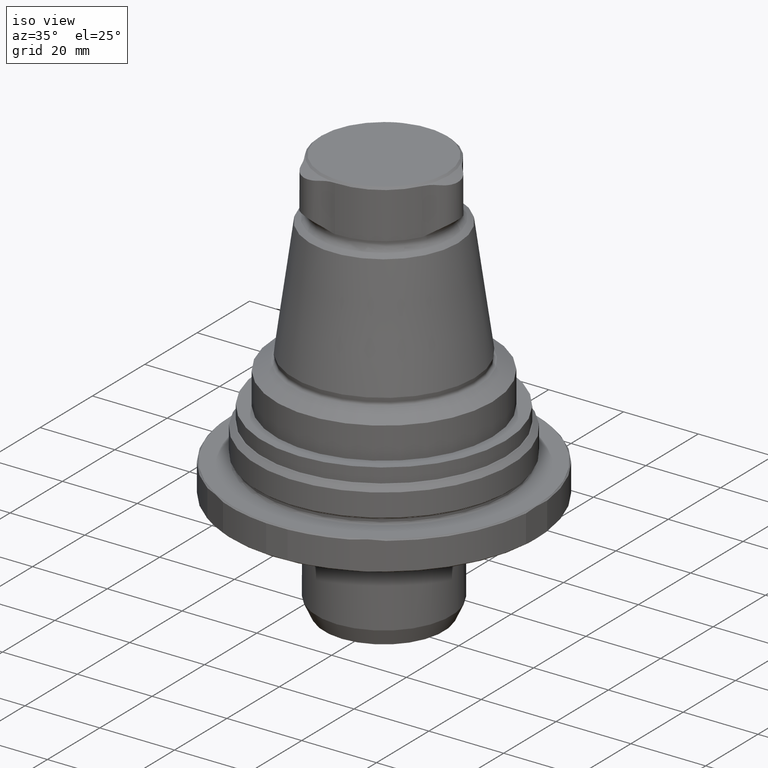
[diagram: clean part render]
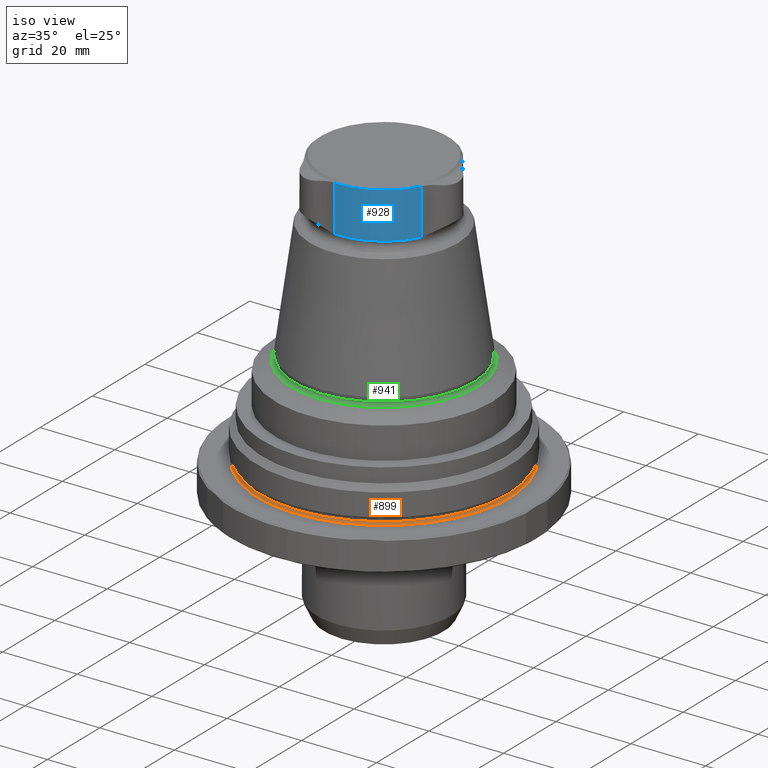
[diagram: same view with three faces highlighted in distinct colors, each labeled with its STEP entity id]
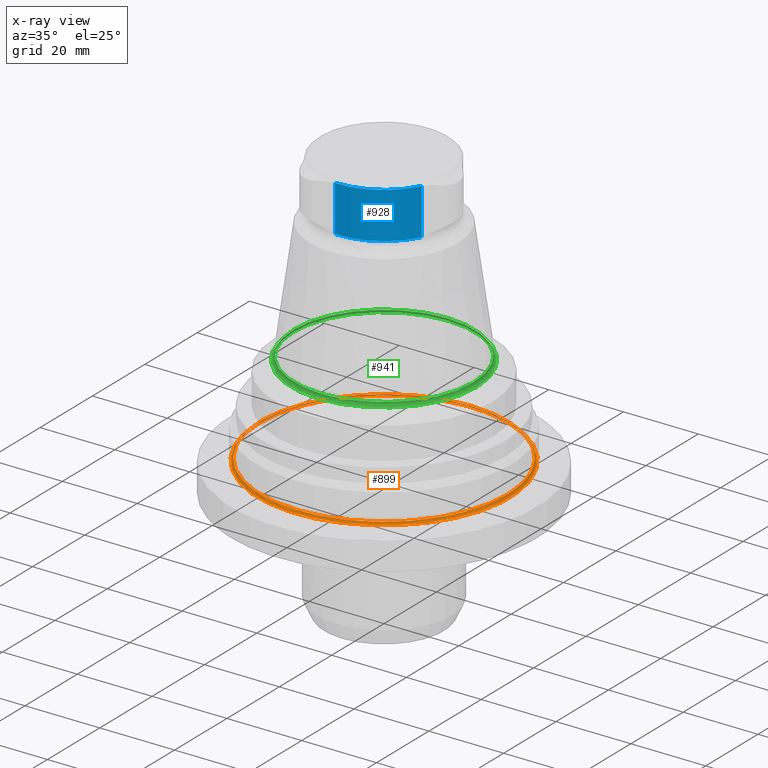
[diagram: x-ray of the same camera — body ghosted, the three highlighted faces saturated]
A machine part, iso view with three faces highlighted in distinct colors.
The next image is the same camera in x-ray (body ghosted, the three faces saturated) — at least one of them is partly hidden behind the body in this view.
Their STEP definitions:

[orange] entity #899 — the highlighted toroidal blend (fillet) surface has major radius 33.65 mm and minor (blend) radius 0.6 mm.
#78=TOROIDAL_SURFACE('',#991,33.65,0.6);
#117=CIRCLE('',#973,33.05);
#127=CIRCLE('',#992,33.65);
#193=ORIENTED_EDGE('',*,*,#428,.F.);
#194=ORIENTED_EDGE('',*,*,#418,.T.);
#418=EDGE_CURVE('',#541,#541,#117,.T.);
#428=EDGE_CURVE('',#551,#551,#127,.T.);
#541=VERTEX_POINT('',#1401);
#551=VERTEX_POINT('',#1430);
#696=EDGE_LOOP('',(#193));
#697=EDGE_LOOP('',(#194));
#791=FACE_BOUND('',#696,.T.);
#792=FACE_BOUND('',#697,.T.);
#899=ADVANCED_FACE('',(#791,#792),#78,.F.);
#973=AXIS2_PLACEMENT_3D('',#1400,#1102,#1103);
#991=AXIS2_PLACEMENT_3D('',#1428,#1138,#1139);
#992=AXIS2_PLACEMENT_3D('',#1429,#1140,#1141);
#1102=DIRECTION('',(-5.20001084984554E-33,-4.76419527885826E-18,-1.));
#1103=DIRECTION('',(-1.,0.,0.));
#1138=DIRECTION('',(-5.20001084984554E-33,-4.76419527885826E-18,-1.));
#1139=DIRECTION('',(-1.,0.,0.));
#1140=DIRECTION('',(-5.20001084984554E-33,-4.76419527885826E-18,-1.));
#1141=DIRECTION('',(-1.,0.,0.));
#1400=CARTESIAN_POINT('',(7.88665112559661E-15,-4.28777575097248E-17,-0.400000000000008));
#1401=CARTESIAN_POINT('',(-33.05,-4.28777575097248E-17,-0.400000000000008));
#1428=CARTESIAN_POINT('',(7.88665112559661E-15,-4.28777575097248E-17,-0.400000000000008));
#1429=CARTESIAN_POINT('',(7.88665112559661E-15,-4.57362746770397E-17,-1.00000000000001));
#1430=CARTESIAN_POINT('',(-33.65,-4.57362746770397E-17,-1.00000000000001));

[blue] entity #928 — the highlighted cylindrical surface (partial cylindrical patch) has radius 17.38 mm, axis along (0, 0, 1).
#43=LINE('',#1704,#71);
#44=LINE('',#1712,#72);
#71=VECTOR('',#1267,1000.);
#72=VECTOR('',#1270,1000.);
#149=CIRCLE('',#1039,17.38);
#151=CIRCLE('',#1045,17.38);
#337=ORIENTED_EDGE('',*,*,#508,.T.);
#338=ORIENTED_EDGE('',*,*,#499,.F.);
#339=ORIENTED_EDGE('',*,*,#506,.F.);
#340=ORIENTED_EDGE('',*,*,#509,.F.);
#499=EDGE_CURVE('',#603,#604,#149,.F.);
#506=EDGE_CURVE('',#608,#603,#43,.T.);
#508=EDGE_CURVE('',#609,#604,#44,.T.);
#509=EDGE_CURVE('',#609,#608,#151,.T.);
#603=VERTEX_POINT('',#1676);
#604=VERTEX_POINT('',#1678);
#608=VERTEX_POINT('',#1705);
#609=VERTEX_POINT('',#1713);
#731=EDGE_LOOP('',(#337,#338,#339,#340));
#826=FACE_BOUND('',#731,.T.);
#875=CYLINDRICAL_SURFACE('',#1044,17.38);
#928=ADVANCED_FACE('',(#826),#875,.T.);
#1039=AXIS2_PLACEMENT_3D('',#1677,#1256,#1257);
#1044=AXIS2_PLACEMENT_3D('',#1711,#1268,#1269);
#1045=AXIS2_PLACEMENT_3D('',#1714,#1271,#1272);
#1256=DIRECTION('',(1.22461692971323E-16,-7.49836836562635E-33,-1.));
#1257=DIRECTION('',(-1.,6.12303176911189E-17,-1.22461692971323E-16));
#1267=DIRECTION('',(0.,0.,1.));
#1268=DIRECTION('',(0.,0.,1.));
#1269=DIRECTION('',(1.,-6.12303176911189E-17,0.));
#1270=DIRECTION('',(0.,0.,1.));
#1271=DIRECTION('',(1.22461692971323E-16,-7.49836836562635E-33,-1.));
#1272=DIRECTION('',(-1.,6.12303176911189E-17,-1.22461692971323E-16));
#1676=CARTESIAN_POINT('',(-0.969406954051809,-17.3529435588731,72.4636029765734));
#1677=CARTESIAN_POINT('',(6.58061858370224E-17,-4.02933366484169E-33,72.4636029765734));
#1678=CARTESIAN_POINT('',(15.5127934294476,-7.83694073062241,72.4636029765734));
#1704=CARTESIAN_POINT('',(-0.969406954051809,-17.3529435588731,-46.0210065492642));
#1705=CARTESIAN_POINT('',(-0.969406954051809,-17.3529435588731,60.1084837377934));
#1711=CARTESIAN_POINT('',(-6.00333659446232E-15,4.21961895794134E-15,-46.0210065492642));
#1712=CARTESIAN_POINT('',(15.5127934294476,-7.83694073062241,-46.0210065492642));
#1713=CARTESIAN_POINT('',(15.5127934294476,-7.83694073062241,60.1084837377934));
#1714=CARTESIAN_POINT('',(-7.64773027486394E-17,4.68272954345907E-33,60.1084837377934));

[green] entity #941 — the highlighted toroidal blend (fillet) surface has major radius 24.8 mm and minor (blend) radius 0.8 mm.
#80=TOROIDAL_SURFACE('',#1066,24.8,0.8);
#159=CIRCLE('',#1065,24.0121537975902);
#160=CIRCLE('',#1067,24.8);
#396=ORIENTED_EDGE('',*,*,#528,.T.);
#397=ORIENTED_EDGE('',*,*,#529,.F.);
#528=EDGE_CURVE('',#620,#620,#159,.T.);
#529=EDGE_CURVE('',#621,#621,#160,.T.);
#620=VERTEX_POINT('',#1784);
#621=VERTEX_POINT('',#1787);
#748=EDGE_LOOP('',(#396));
#749=EDGE_LOOP('',(#397));
#843=FACE_BOUND('',#748,.T.);
#844=FACE_BOUND('',#749,.T.);
#941=ADVANCED_FACE('',(#843,#844),#80,.F.);
#1065=AXIS2_PLACEMENT_3D('',#1783,#1314,#1315);
#1066=AXIS2_PLACEMENT_3D('',#1785,#1316,#1317);
#1067=AXIS2_PLACEMENT_3D('',#1786,#1318,#1319);
#1314=DIRECTION('',(1.22461692971323E-16,-7.49836836562635E-33,-1.));
#1315=DIRECTION('',(-1.,6.12303176911189E-17,-1.22461692971323E-16));
#1316=DIRECTION('',(1.22461692971323E-16,-7.49836836562635E-33,-1.));
#1317=DIRECTION('',(-1.,6.12303176911189E-17,-1.22461692971323E-16));
#1318=DIRECTION('',(1.22461692971323E-16,-7.49836836562635E-33,-1.));
#1319=DIRECTION('',(-1.,6.12303176911189E-17,-1.22461692971323E-16));
#1783=CARTESIAN_POINT('',(5.96453016039818E-15,-3.65210076599441E-31,24.2956915959715));
#1784=CARTESIAN_POINT('',(-24.0121537975902,1.47027180547446E-15,24.2956915959715));
#1785=CARTESIAN_POINT('',(6.93889390390723E-15,-4.24870678161208E-31,24.1567730538379));
#1786=CARTESIAN_POINT('',(6.07951171463002E-15,-3.72250433693675E-31,23.3567730538379));
#1787=CARTESIAN_POINT('',(-24.8,1.51851187873975E-15,23.3567730538379));